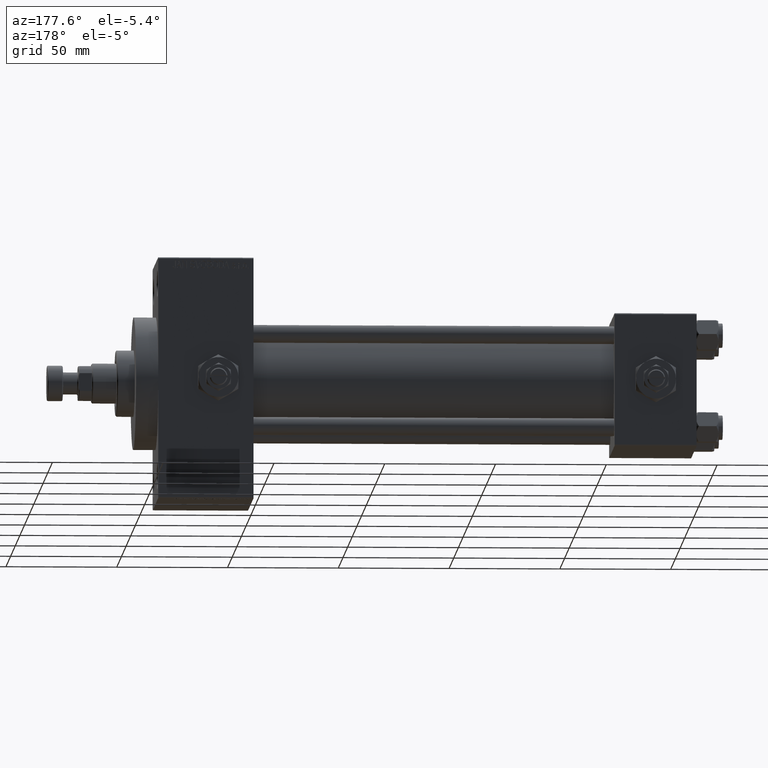
[diagram: clean part render]
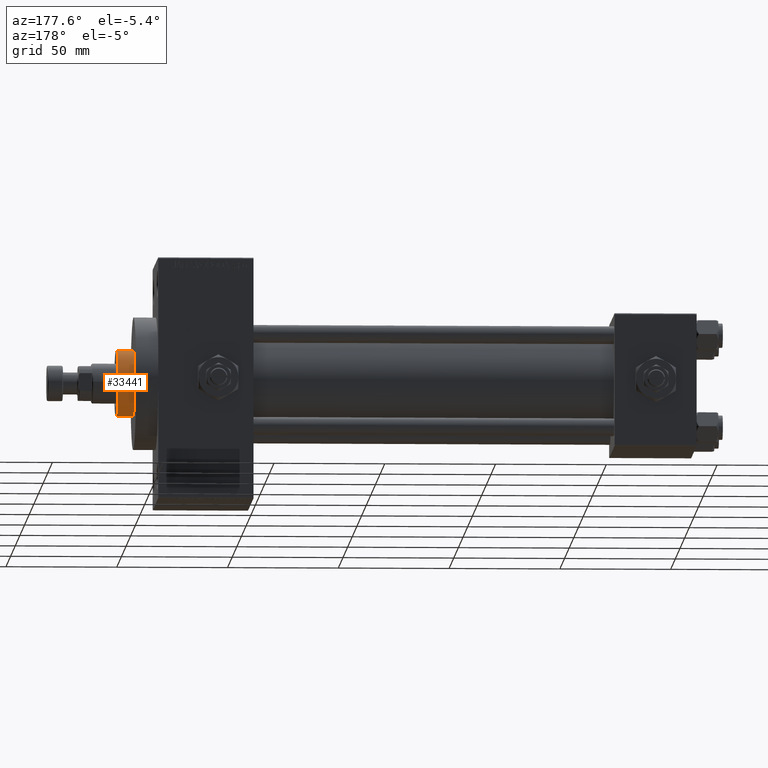
[diagram: same view with one face highlighted and labeled with its STEP entity id]
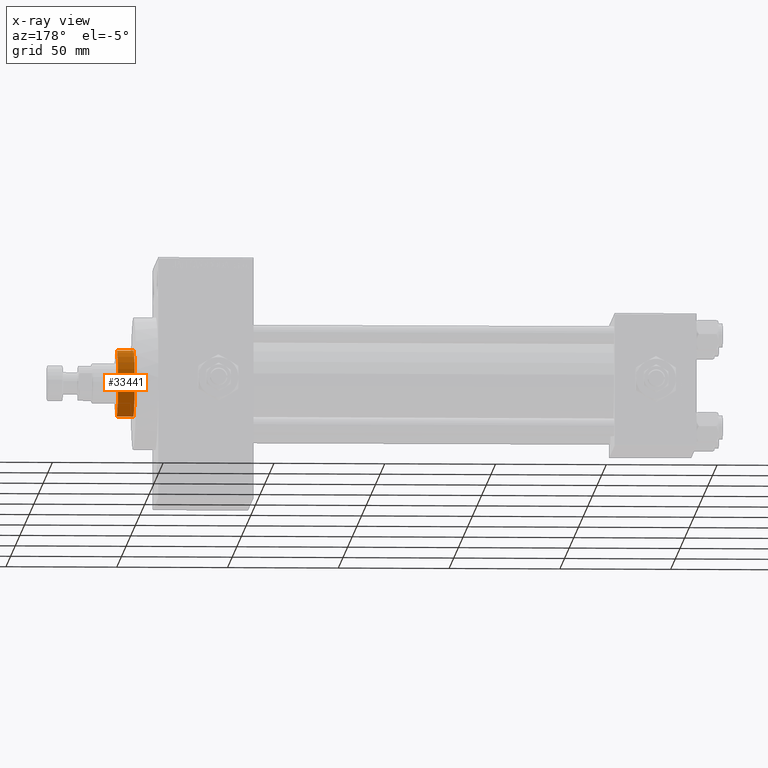
[diagram: x-ray of the same camera — body ghosted, the highlighted face saturated]
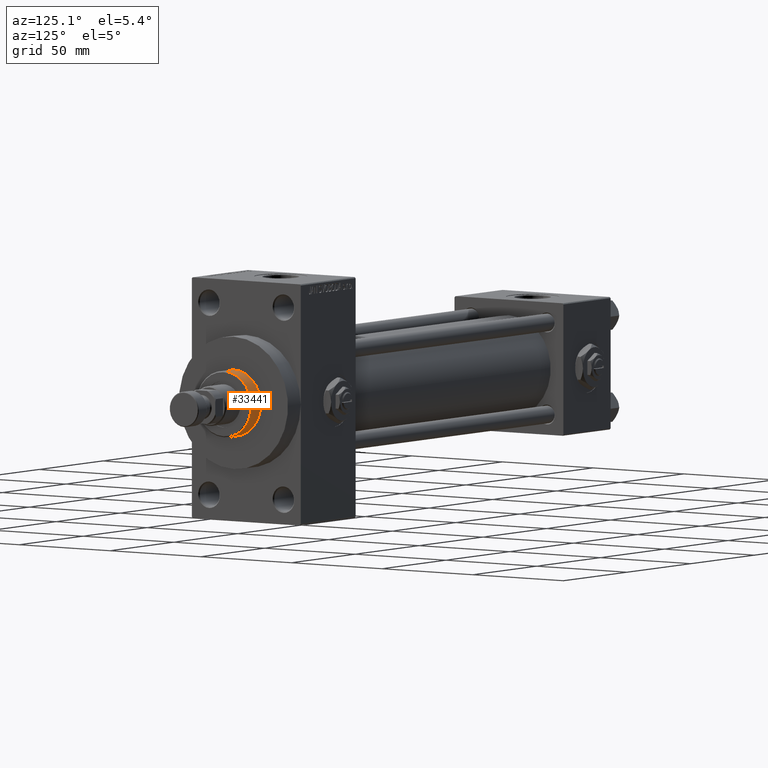
[diagram: same view with one face highlighted and labeled with its STEP entity id]
A machine part, auxiliary view. The second image highlights one B-rep face of the part: STEP entity #33441.
The next image is the same camera in x-ray: the body ghosted, the highlighted face saturated — about 0% of this face is hidden behind the body in this view.
A second angle (auxiliary view) of the same face is appended — the face is thin or edge-on in the first view.
In plain terms, the highlighted cylindrical surface (edge-blend (fillet) strip) has radius 15 mm, axis along (-1, 0, 0).
Its self-contained STEP definition (entity closure, byte-faithful):
#683 = DIRECTION ( 'NONE',  ( -0.000000000000000000, -0.000000000000000000, -1.000000000000000000 ) ) ;
#1247 = DIRECTION ( 'NONE',  ( -0.000000000000000000, -0.000000000000000000, -1.000000000000000000 ) ) ;
#1789 = VERTEX_POINT ( 'NONE', #15068 ) ;
#3464 = AXIS2_PLACEMENT_3D ( 'NONE', #29011, #5119, #44354 ) ;
#4142 = DIRECTION ( 'NONE',  ( 0.000000000000000000, 0.000000000000000000, 1.000000000000000000 ) ) ;
#4749 = VERTEX_POINT ( 'NONE', #24284 ) ;
#5003 = CARTESIAN_POINT ( 'NONE',  ( 0.000000000000000000, 0.000000000000000000, 51.25999999999999801 ) ) ;
#5119 = DIRECTION ( 'NONE',  ( 0.000000000000000000, 0.000000000000000000, -1.000000000000000000 ) ) ;
#5785 = EDGE_CURVE ( 'NONE', #4749, #1789, #7512, .T. ) ;
#6324 = ORIENTED_EDGE ( 'NONE', *, *, #18502, .F. ) ;
#6583 = AXIS2_PLACEMENT_3D ( 'NONE', #5003, #1247, #19599 ) ;
#7512 = CIRCLE ( 'NONE', #3464, 15.00000000000000000 ) ;
#8415 = DIRECTION ( 'NONE',  ( -0.000000000000000000, -0.000000000000000000, -1.000000000000000000 ) ) ;
#8486 = LINE ( 'NONE', #34891, #35786 ) ;
#8900 = LINE ( 'NONE', #13168, #18852 ) ;
#8904 = VERTEX_POINT ( 'NONE', #21868 ) ;
#11647 = EDGE_CURVE ( 'NONE', #8904, #16284, #25190, .T. ) ;
#13168 = CARTESIAN_POINT ( 'NONE',  ( 15.00000000000000000, 1.836970198721029589E-15, 51.25999999999999801 ) ) ;
#14589 = ORIENTED_EDGE ( 'NONE', *, *, #19454, .T. ) ;
#15000 = ORIENTED_EDGE ( 'NONE', *, *, #5785, .T. ) ;
#15068 = CARTESIAN_POINT ( 'NONE',  ( -15.00000000000000000, 0.000000000000000000, 50.75999999999998380 ) ) ;
#15541 = AXIS2_PLACEMENT_3D ( 'NONE', #46899, #4142, #35085 ) ;
#16284 = VERTEX_POINT ( 'NONE', #22531 ) ;
#16936 = ORIENTED_EDGE ( 'NONE', *, *, #11647, .T. ) ;
#18502 = EDGE_CURVE ( 'NONE', #4749, #16284, #8900, .T. ) ;
#18852 = VECTOR ( 'NONE', #8415, 1000.000000000000000 ) ;
#19454 = EDGE_CURVE ( 'NONE', #1789, #8904, #8486, .T. ) ;
#19599 = DIRECTION ( 'NONE',  ( -1.000000000000000000, 0.000000000000000000, 0.000000000000000000 ) ) ;
#21868 = CARTESIAN_POINT ( 'NONE',  ( -15.00000000000000000, 0.000000000000000000, 43.25999999999999801 ) ) ;
#22531 = CARTESIAN_POINT ( 'NONE',  ( 15.00000000000000000, 1.836970198721029589E-15, 43.25999999999999801 ) ) ;
#24284 = CARTESIAN_POINT ( 'NONE',  ( 15.00000000000000000, 1.836970198721029589E-15, 50.75999999999998380 ) ) ;
#25190 = CIRCLE ( 'NONE', #15541, 15.00000000000000000 ) ;
#29011 = CARTESIAN_POINT ( 'NONE',  ( 0.000000000000000000, 0.000000000000000000, 50.75999999999998380 ) ) ;
#31431 = FACE_OUTER_BOUND ( 'NONE', #45312, .T. ) ;
#33441 = ADVANCED_FACE ( 'NONE', ( #31431 ), #38979, .T. ) ;
#34891 = CARTESIAN_POINT ( 'NONE',  ( -15.00000000000000000, 0.000000000000000000, 51.25999999999999801 ) ) ;
#35085 = DIRECTION ( 'NONE',  ( 1.000000000000000000, 0.000000000000000000, 0.000000000000000000 ) ) ;
#35786 = VECTOR ( 'NONE', #683, 1000.000000000000000 ) ;
#38979 = CYLINDRICAL_SURFACE ( 'NONE', #6583, 15.00000000000000000 ) ;
#44354 = DIRECTION ( 'NONE',  ( 1.000000000000000000, 0.000000000000000000, 0.000000000000000000 ) ) ;
#45312 = EDGE_LOOP ( 'NONE', ( #6324, #15000, #14589, #16936 ) ) ;
#46899 = CARTESIAN_POINT ( 'NONE',  ( 0.000000000000000000, 0.000000000000000000, 43.25999999999999801 ) ) ;